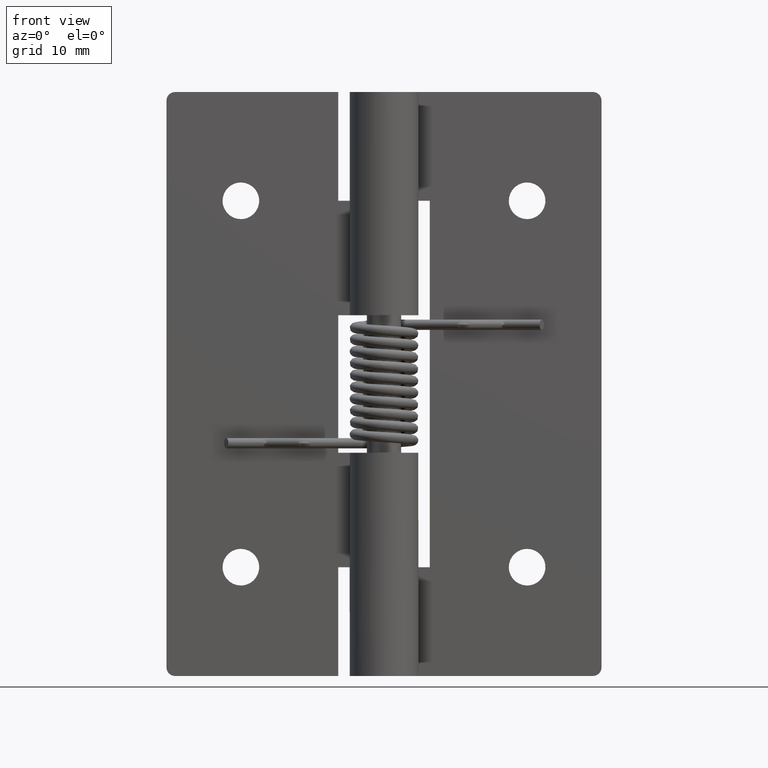
[diagram: clean part render]
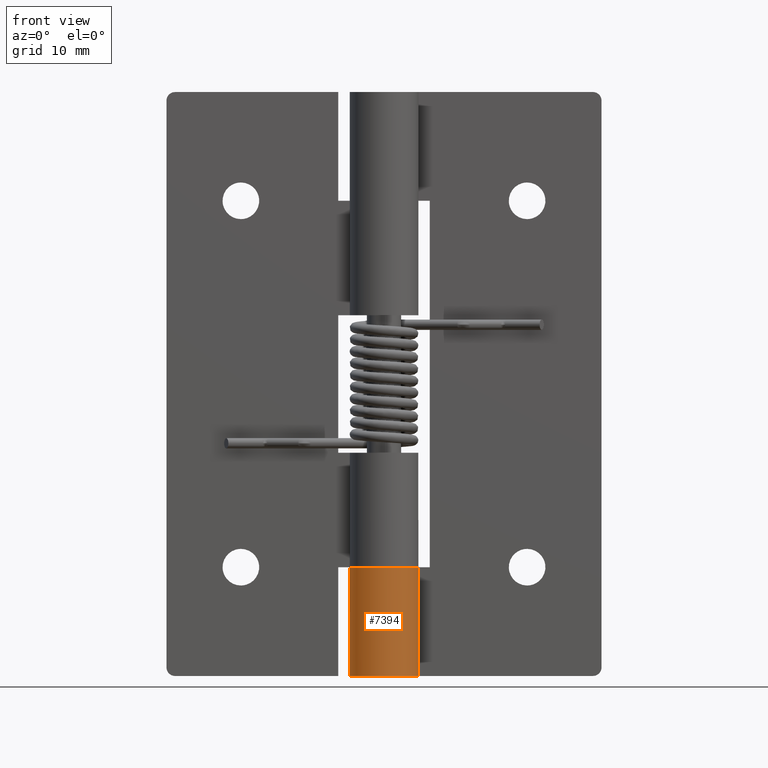
[diagram: same view with one face highlighted and labeled with its STEP entity id]
A machine part, front view. The second image highlights one B-rep face of the part: STEP entity #7394.
In plain terms, the highlighted face is a freeform B-spline surface patch.
Its self-contained STEP definition (entity closure, byte-faithful):
#6819=CARTESIAN_POINT('',(0.0,3.0,9.499999999999801));
#6820=VERTEX_POINT('',#6819);
#6826=CARTESIAN_POINT('',(2.626309197333780,1.450000000000000,9.499999999999840));
#6827=VERTEX_POINT('',#6826);
#6828=CARTESIAN_POINT('',(0.0,3.0,9.499999999999801));
#6829=CARTESIAN_POINT('',(-2.290598042424809,3.000000000000000,9.499999999999840));
#6830=CARTESIAN_POINT('',(-2.894028888043301,0.790314364775724,9.499999999999840));
#6831=CARTESIAN_POINT('',(-3.497459733661795,-1.419371270448553,9.499999999999840));
#6832=CARTESIAN_POINT('',(-1.524795068197690,-2.583602136552763,9.499999999999840));
#6833=CARTESIAN_POINT('',(0.447869597266411,-3.747833002656972,9.499999999999840));
#6834=CARTESIAN_POINT('',(2.090650590886090,-2.151552952364325,9.499999999999840));
#6835=CARTESIAN_POINT('',(3.733431584505770,-0.555272902071677,9.499999999999840));
#6836=CARTESIAN_POINT('',(2.626309197333780,1.449999999999999,9.499999999999840));
#6844=(BOUNDED_CURVE()B_SPLINE_CURVE(2,(#6828,#6829,#6830,#6831,#6832,#6833,#6834,#6835,#6836),.UNSPECIFIED.,.F.,.U.)B_SPLINE_CURVE_WITH_KNOTS((3,2,2,2,3),(0.0,0.250000000000000,0.500000000000000,0.750000000000000,1.0),.UNSPECIFIED.)CURVE()GEOMETRIC_REPRESENTATION_ITEM()RATIONAL_B_SPLINE_CURVE((1.0,0.794807562115481,1.0,0.794807562115481,1.0,0.794807562115481,1.0,0.794807562115481,1.0))REPRESENTATION_ITEM(''));
#6845=EDGE_CURVE('',#6820,#6827,#6844,.T.);
#7200=CARTESIAN_POINT('',(2.626309197333780,1.450000000000000,0.0));
#7201=VERTEX_POINT('',#7200);
#7207=CARTESIAN_POINT('',(0.0,3.0,0.0));
#7208=VERTEX_POINT('',#7207);
#7209=CARTESIAN_POINT('',(2.626309197333780,1.450000000000000,0.0));
#7210=CARTESIAN_POINT('',(3.733431584505770,-0.555272902071675,0.0));
#7211=CARTESIAN_POINT('',(2.090650590886091,-2.151552952364324,0.0));
#7212=CARTESIAN_POINT('',(0.447869597266413,-3.747833002656972,0.0));
#7213=CARTESIAN_POINT('',(-1.524795068197689,-2.583602136552764,0.0));
#7214=CARTESIAN_POINT('',(-3.497459733661792,-1.419371270448555,0.0));
#7215=CARTESIAN_POINT('',(-2.894028888043301,0.790314364775722,0.0));
#7216=CARTESIAN_POINT('',(-2.290598042424809,3.000000000000000,0.0));
#7217=CARTESIAN_POINT('',(0.0,3.0,0.0));
#7225=(BOUNDED_CURVE()B_SPLINE_CURVE(2,(#7209,#7210,#7211,#7212,#7213,#7214,#7215,#7216,#7217),.UNSPECIFIED.,.F.,.U.)B_SPLINE_CURVE_WITH_KNOTS((3,2,2,2,3),(0.0,0.250000000000000,0.500000000000000,0.750000000000000,1.0),.UNSPECIFIED.)CURVE()GEOMETRIC_REPRESENTATION_ITEM()RATIONAL_B_SPLINE_CURVE((1.0,0.794807562115481,1.0,0.794807562115481,1.0,0.794807562115481,1.0,0.794807562115481,1.0))REPRESENTATION_ITEM(''));
#7226=EDGE_CURVE('',#7201,#7208,#7225,.T.);
#7262=CARTESIAN_POINT('',(2.626309197333780,1.450000000000000,0.0));
#7263=CARTESIAN_POINT('',(2.626309197333780,1.450000000000000,9.499999999999840));
#7264=QUASI_UNIFORM_CURVE('',1,(#7262,#7263),.UNSPECIFIED.,.F.,.U.);
#7265=EDGE_CURVE('',#7201,#6827,#7264,.T.);
#7362=CARTESIAN_POINT('',(2.584887481324576,1.522615088882112,-0.237499999999996));
#7363=CARTESIAN_POINT('',(2.584887481324576,1.522615088882112,9.743437499999837));
#7364=CARTESIAN_POINT('',(4.454017153952614,-1.650537421576552,-0.237499999999997));
#7365=CARTESIAN_POINT('',(4.454017153952614,-1.650537421576552,9.743437499999837));
#7366=CARTESIAN_POINT('',(0.968449136630486,-2.839384840024272,-0.237499999999996));
#7367=CARTESIAN_POINT('',(0.968449136630486,-2.839384840024272,9.743437499999837));
#7368=CARTESIAN_POINT('',(-2.517118880691642,-4.028232258471992,-0.237499999999997));
#7369=CARTESIAN_POINT('',(-2.517118880691642,-4.028232258471992,9.743437499999837));
#7370=CARTESIAN_POINT('',(-2.976562347997527,-0.374268070349911,-0.237499999999996));
#7371=CARTESIAN_POINT('',(-2.976562347997527,-0.374268070349911,9.743437499999837));
#7372=CARTESIAN_POINT('',(-3.436005815303412,3.279696117772171,-0.237499999999997));
#7373=CARTESIAN_POINT('',(-3.436005815303412,3.279696117772171,9.743437499999837));
#7374=CARTESIAN_POINT('',(0.235377287183536,2.990752001199384,-0.237499999999996));
#7375=CARTESIAN_POINT('',(0.235377287183536,2.990752001199384,9.743437499999837));
#7383=(BOUNDED_SURFACE()B_SPLINE_SURFACE(1,2,((#7362,#7364,#7366,#7368,#7370,#7372,#7374),(#7363,#7365,#7367,#7369,#7371,#7373,#7375)),.UNSPECIFIED.,.F.,.F.,.U.)B_SPLINE_SURFACE_WITH_KNOTS((2,2),(3,2,2,3),(0.0,9.980937499999834),(0.0,5.702297214197750,11.404594428395500,17.106891642593251),.UNSPECIFIED.)GEOMETRIC_REPRESENTATION_ITEM()RATIONAL_B_SPLINE_SURFACE(((1.0,0.631578351302498,1.0,0.631578351302498,1.0,0.631578351302498,1.0),(1.0,0.631578351302498,1.0,0.631578351302498,1.0,0.631578351302498,1.0)))REPRESENTATION_ITEM('')SURFACE());
#7384=ORIENTED_EDGE('',*,*,#6845,.F.);
#7385=CARTESIAN_POINT('',(0.0,3.0,0.0));
#7386=CARTESIAN_POINT('',(0.0,3.0,9.499999999999801));
#7387=QUASI_UNIFORM_CURVE('',1,(#7385,#7386),.UNSPECIFIED.,.F.,.U.);
#7388=EDGE_CURVE('',#7208,#6820,#7387,.T.);
#7389=ORIENTED_EDGE('',*,*,#7388,.F.);
#7390=ORIENTED_EDGE('',*,*,#7226,.F.);
#7391=ORIENTED_EDGE('',*,*,#7265,.T.);
#7392=EDGE_LOOP('',(#7384,#7389,#7390,#7391));
#7393=FACE_OUTER_BOUND('',#7392,.T.);
#7394=ADVANCED_FACE('',(#7393),#7383,.T.);